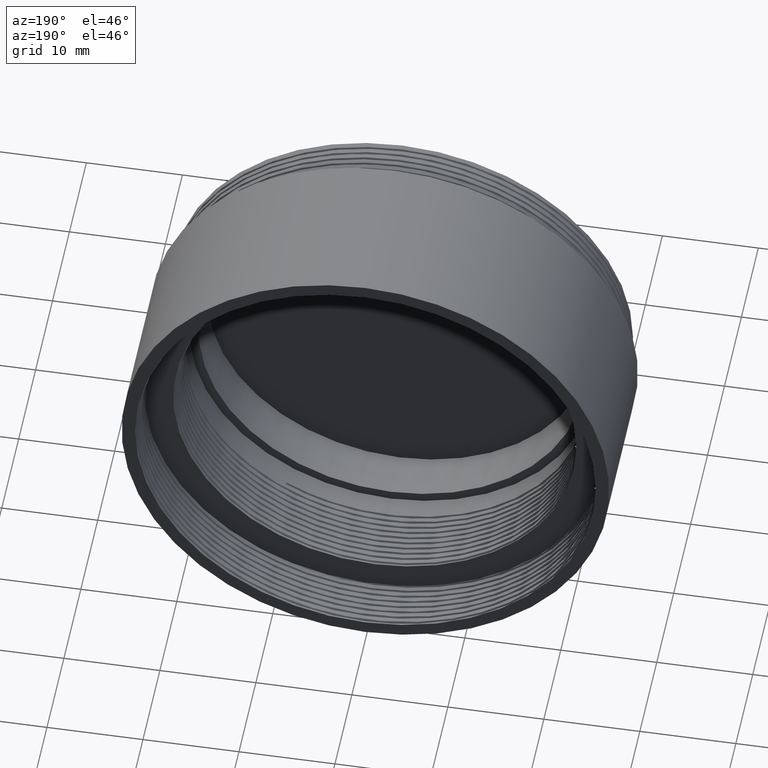
[diagram: clean part render]
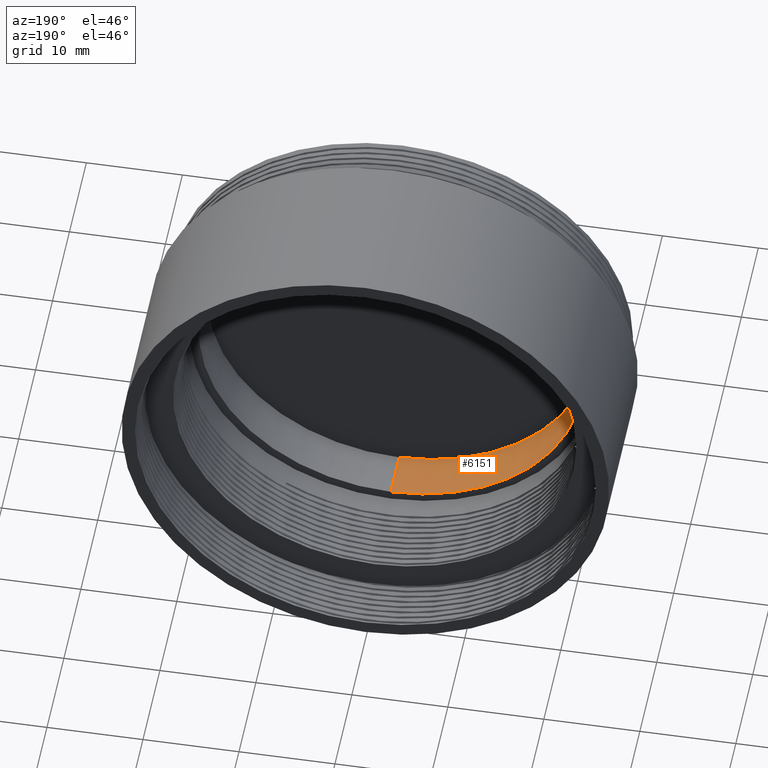
[diagram: same view with one face highlighted and labeled with its STEP entity id]
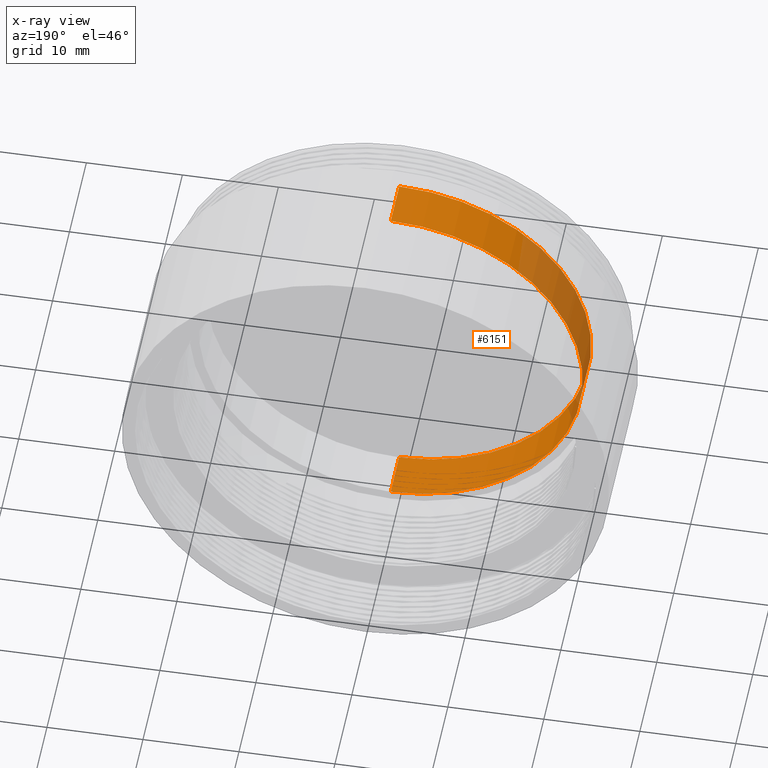
[diagram: x-ray of the same camera — body ghosted, the highlighted face saturated]
A machine part, auxiliary view. The second image highlights one B-rep face of the part: STEP entity #6151.
The next image is the same camera in x-ray: the body ghosted, the highlighted face saturated — about 25% of this face is hidden behind the body in this view.
In plain terms, the highlighted cylindrical surface (partial cylindrical patch) has radius 20 mm, axis along (-0, -1, -0).
Its self-contained STEP definition (entity closure, byte-faithful):
#454 = CARTESIAN_POINT ( 'NONE',  ( 0.000000000000000000, 0.000000000000000000, 0.000000000000000000 ) ) ;
#871 = CARTESIAN_POINT ( 'NONE',  ( 2.449293598294706513E-15, 2.010000000000000231, 20.00000000000000000 ) ) ;
#1209 = ORIENTED_EDGE ( 'NONE', *, *, #6970, .F. ) ;
#1252 = CARTESIAN_POINT ( 'NONE',  ( 0.000000000000000000, 7.000000000000000000, 0.000000000000000000 ) ) ;
#1886 = LINE ( 'NONE', #6309, #5686 ) ;
#2058 = VERTEX_POINT ( 'NONE', #6295 ) ;
#2187 = CARTESIAN_POINT ( 'NONE',  ( 0.000000000000000000, 2.010000000000000231, -20.00000000000000000 ) ) ;
#2200 = DIRECTION ( 'NONE',  ( 0.000000000000000000, 0.000000000000000000, -1.000000000000000000 ) ) ;
#2236 = DIRECTION ( 'NONE',  ( -0.000000000000000000, -1.000000000000000000, -0.000000000000000000 ) ) ;
#2676 = DIRECTION ( 'NONE',  ( -0.000000000000000000, -1.000000000000000000, -0.000000000000000000 ) ) ;
#2708 = VERTEX_POINT ( 'NONE', #871 ) ;
#2779 = CARTESIAN_POINT ( 'NONE',  ( 2.449293598294706513E-15, 0.000000000000000000, 20.00000000000000000 ) ) ;
#2781 = FACE_OUTER_BOUND ( 'NONE', #6664, .T. ) ;
#3362 = AXIS2_PLACEMENT_3D ( 'NONE', #3536, #5776, #5163 ) ;
#3483 = DIRECTION ( 'NONE',  ( -0.000000000000000000, -1.000000000000000000, -0.000000000000000000 ) ) ;
#3536 = CARTESIAN_POINT ( 'NONE',  ( 0.000000000000000000, 2.010000000000000231, 0.000000000000000000 ) ) ;
#3714 = VECTOR ( 'NONE', #2236, 1000.000000000000000 ) ;
#3720 = AXIS2_PLACEMENT_3D ( 'NONE', #454, #2676, #2200 ) ;
#3742 = ORIENTED_EDGE ( 'NONE', *, *, #4613, .F. ) ;
#3961 = EDGE_CURVE ( 'NONE', #2058, #2708, #5531, .T. ) ;
#3985 = ORIENTED_EDGE ( 'NONE', *, *, #4708, .F. ) ;
#4521 = VERTEX_POINT ( 'NONE', #2187 ) ;
#4613 = EDGE_CURVE ( 'NONE', #4521, #2708, #5332, .T. ) ;
#4616 = DIRECTION ( 'NONE',  ( -0.000000000000000000, -1.000000000000000000, -0.000000000000000000 ) ) ;
#4708 = EDGE_CURVE ( 'NONE', #2058, #6822, #5212, .T. ) ;
#5046 = ORIENTED_EDGE ( 'NONE', *, *, #3961, .T. ) ;
#5163 = DIRECTION ( 'NONE',  ( 0.000000000000000000, 0.000000000000000000, 1.000000000000000000 ) ) ;
#5212 = CIRCLE ( 'NONE', #6265, 20.00000000000000000 ) ;
#5332 = CIRCLE ( 'NONE', #3362, 20.00000000000000000 ) ;
#5497 = CYLINDRICAL_SURFACE ( 'NONE', #3720, 20.00000000000000000 ) ;
#5531 = LINE ( 'NONE', #2779, #3714 ) ;
#5686 = VECTOR ( 'NONE', #3483, 1000.000000000000000 ) ;
#5687 = CARTESIAN_POINT ( 'NONE',  ( 0.000000000000000000, 7.000000000000000000, -20.00000000000000000 ) ) ;
#5776 = DIRECTION ( 'NONE',  ( 0.000000000000000000, 1.000000000000000000, 0.000000000000000000 ) ) ;
#6151 = ADVANCED_FACE ( 'NONE', ( #2781 ), #5497, .F. ) ;
#6265 = AXIS2_PLACEMENT_3D ( 'NONE', #1252, #4616, #6832 ) ;
#6295 = CARTESIAN_POINT ( 'NONE',  ( 2.449293598294706513E-15, 7.000000000000000000, 20.00000000000000000 ) ) ;
#6309 = CARTESIAN_POINT ( 'NONE',  ( 0.000000000000000000, 0.000000000000000000, -20.00000000000000000 ) ) ;
#6664 = EDGE_LOOP ( 'NONE', ( #3985, #5046, #3742, #1209 ) ) ;
#6822 = VERTEX_POINT ( 'NONE', #5687 ) ;
#6832 = DIRECTION ( 'NONE',  ( 0.000000000000000000, 0.000000000000000000, -1.000000000000000000 ) ) ;
#6970 = EDGE_CURVE ( 'NONE', #6822, #4521, #1886, .T. ) ;